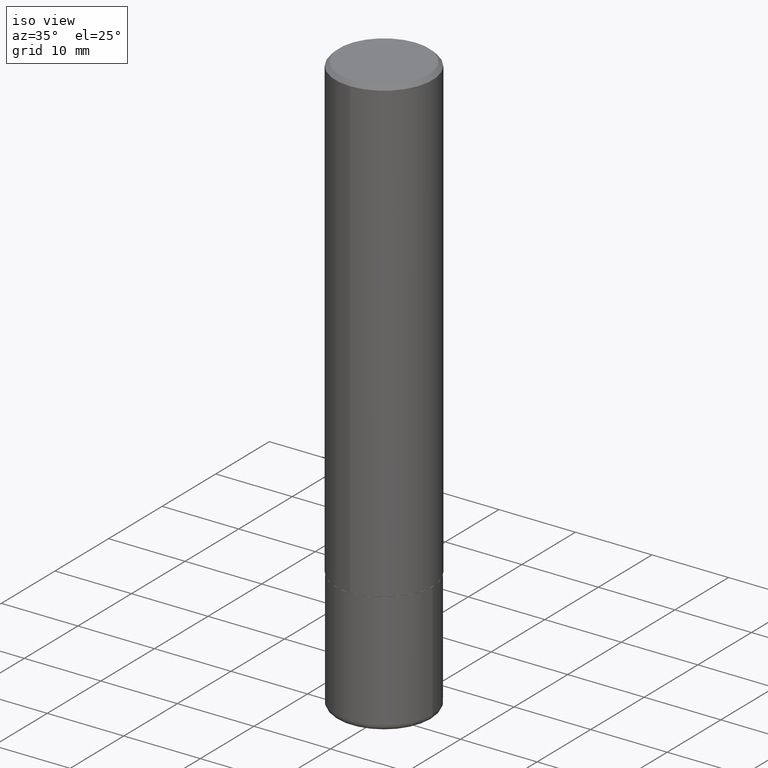
[diagram: clean part render]
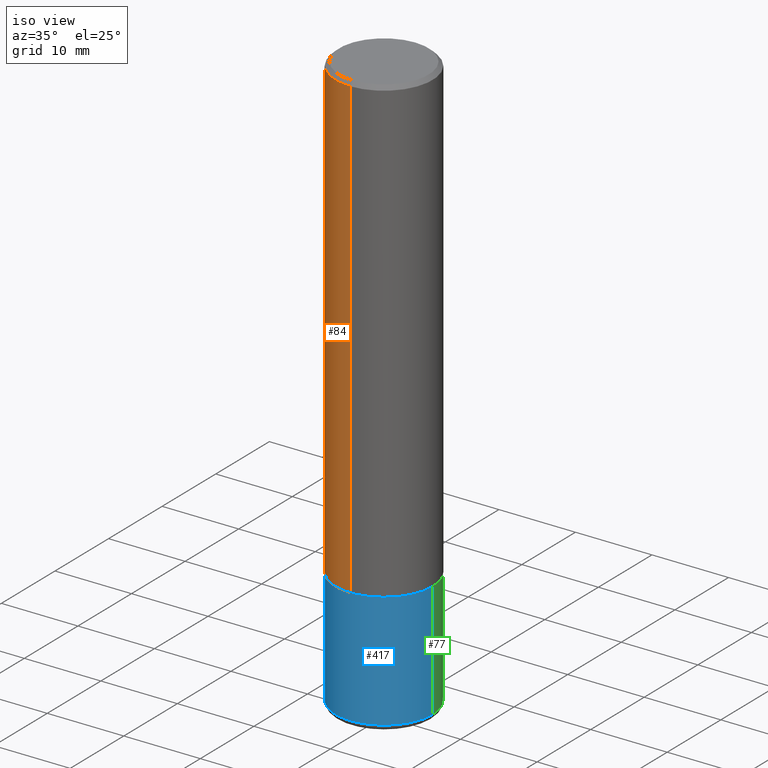
[diagram: same view with three faces highlighted in distinct colors, each labeled with its STEP entity id]
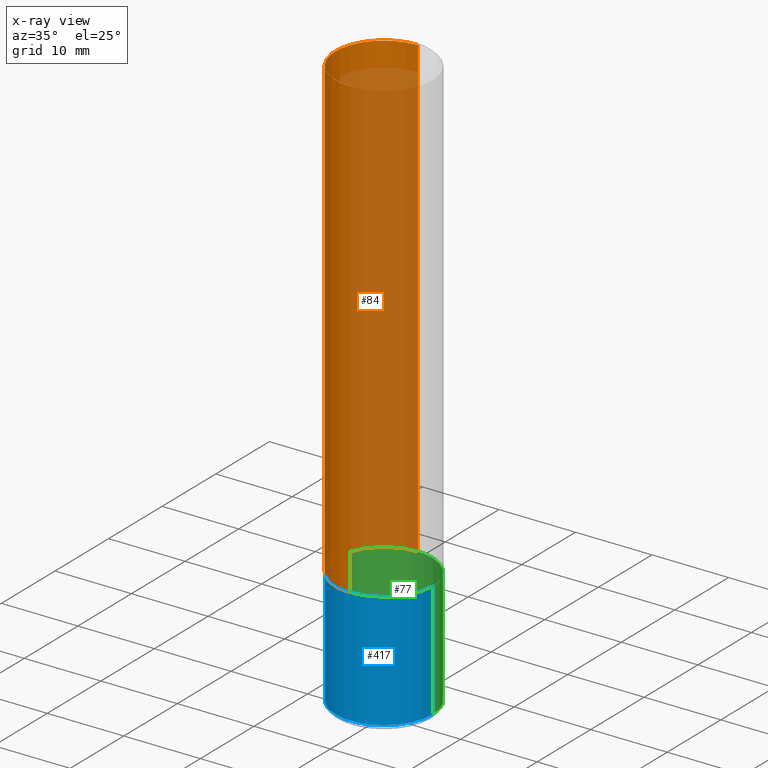
[diagram: x-ray of the same camera — body ghosted, the three highlighted faces saturated]
A machine part, iso view with three faces highlighted in distinct colors.
The next image is the same camera in x-ray (body ghosted, the three faces saturated) — at least one of them is partly hidden behind the body in this view.
Their STEP definitions:

[orange] entity #84 — the highlighted cylindrical surface (partial cylindrical patch) has radius 6.35 mm, axis along (-0, 0, 1).
#7 = FACE_OUTER_BOUND ( 'NONE', #274, .T. ) ;
#14 = CIRCLE ( 'NONE', #40, 0.2500000000000002776 ) ;
#22 = ORIENTED_EDGE ( 'NONE', *, *, #352, .T. ) ;
#24 = CARTESIAN_POINT ( 'NONE',  ( -1.745740669421567467E-15, -0.2500000000000001110, 8.727769067796535567E-16 ) ) ;
#34 = CYLINDRICAL_SURFACE ( 'NONE', #255, 0.2500000000000001110 ) ;
#36 = DIRECTION ( 'NONE',  ( -6.982962677686266711E-15, -1.000000000000000000, 3.491107627118612649E-15 ) ) ;
#40 = AXIS2_PLACEMENT_3D ( 'NONE', #329, #302, #112 ) ;
#63 = CARTESIAN_POINT ( 'NONE',  ( -1.715124499442882299E-15, -0.2500000000000000555, -0.01999999999999918510 ) ) ;
#71 = CARTESIAN_POINT ( 'NONE',  ( 4.891459535375212615E-31, -6.982215254237243146E-17, -0.02000000000000005593 ) ) ;
#75 = AXIS2_PLACEMENT_3D ( 'NONE', #71, #318, #299 ) ;
#84 = ADVANCED_FACE ( 'NONE', ( #7 ), #34, .T. ) ;
#98 = VECTOR ( 'NONE', #281, 39.37007874015748143 ) ;
#109 = DIRECTION ( 'NONE',  ( -2.445729767687599458E-29, 3.491107627118612255E-15, 1.000000000000000000 ) ) ;
#112 = DIRECTION ( 'NONE',  ( -6.982962677686265922E-15, -1.000000000000000000, 3.278217592397112312E-15 ) ) ;
#116 = EDGE_CURVE ( 'NONE', #201, #235, #178, .T. ) ;
#122 = ORIENTED_EDGE ( 'NONE', *, *, #365, .F. ) ;
#126 = CARTESIAN_POINT ( 'NONE',  ( 1.776356839400251254E-15, 0.2500000000000001110, -8.727769067796535567E-16 ) ) ;
#149 = VERTEX_POINT ( 'NONE', #276 ) ;
#151 = VECTOR ( 'NONE', #168, 39.37007874015748143 ) ;
#167 = ORIENTED_EDGE ( 'NONE', *, *, #385, .T. ) ;
#168 = DIRECTION ( 'NONE',  ( -2.445729767687599458E-29, 3.491107627118612649E-15, 1.000000000000000000 ) ) ;
#178 = CIRCLE ( 'NONE', #75, 0.2500000000000000000 ) ;
#201 = VERTEX_POINT ( 'NONE', #317 ) ;
#224 = CARTESIAN_POINT ( 'NONE',  ( 0.000000000000000000, 0.000000000000000000, 0.000000000000000000 ) ) ;
#235 = VERTEX_POINT ( 'NONE', #63 ) ;
#255 = AXIS2_PLACEMENT_3D ( 'NONE', #224, #109, #36 ) ;
#274 = EDGE_LOOP ( 'NONE', ( #122, #167, #22, #294 ) ) ;
#276 = CARTESIAN_POINT ( 'NONE',  ( -1.745740669421510471E-15, -0.2500000000000085487, -2.373999999999999222 ) ) ;
#281 = DIRECTION ( 'NONE',  ( -2.445729767687599458E-29, 3.491107627118612649E-15, 1.000000000000000000 ) ) ;
#294 = ORIENTED_EDGE ( 'NONE', *, *, #116, .F. ) ;
#299 = DIRECTION ( 'NONE',  ( -6.982962677686265922E-15, -1.000000000000000000, 3.483106191921935554E-15 ) ) ;
#302 = DIRECTION ( 'NONE',  ( -2.445729767687599458E-29, 3.491107627118612255E-15, 1.000000000000000000 ) ) ;
#311 = LINE ( 'NONE', #24, #98 ) ;
#317 = CARTESIAN_POINT ( 'NONE',  ( 1.745740669421566875E-15, 0.2499999999999999167, -0.02000000000000092676 ) ) ;
#318 = DIRECTION ( 'NONE',  ( -2.445729767687599458E-29, 3.491107627118612255E-15, 1.000000000000000000 ) ) ;
#329 = CARTESIAN_POINT ( 'NONE',  ( 5.806162468490361962E-29, -8.287889506779587323E-15, -2.374000000000000110 ) ) ;
#352 = EDGE_CURVE ( 'NONE', #149, #235, #311, .T. ) ;
#365 = EDGE_CURVE ( 'NONE', #372, #201, #412, .T. ) ;
#372 = VERTEX_POINT ( 'NONE', #395 ) ;
#385 = EDGE_CURVE ( 'NONE', #372, #149, #14, .T. ) ;
#395 = CARTESIAN_POINT ( 'NONE',  ( 1.776356839400280836E-15, 0.2499999999999919786, -2.374000000000000998 ) ) ;
#412 = LINE ( 'NONE', #126, #151 ) ;

[blue] entity #417 — the highlighted cylindrical surface (partial cylindrical patch) has radius 6.35 mm, axis along (-0, 0, 1).
#1 = ORIENTED_EDGE ( 'NONE', *, *, #298, .T. ) ;
#3 = DIRECTION ( 'NONE',  ( -2.445468806185136597E-29, 3.491481338843145583E-15, 1.000000000000000000 ) ) ;
#11 = CARTESIAN_POINT ( 'NONE',  ( 0.000000000000000000, 0.000000000000000000, 0.000000000000000000 ) ) ;
#25 = ORIENTED_EDGE ( 'NONE', *, *, #119, .F. ) ;
#29 = CARTESIAN_POINT ( 'NONE',  ( 7.263042354369856275E-29, -1.036969957636414298E-14, -2.970000000000000195 ) ) ;
#58 = VECTOR ( 'NONE', #76, 39.37007874015748143 ) ;
#74 = CARTESIAN_POINT ( 'NONE',  ( -0.2500000000000000000, -7.554627038658056086E-15, -2.375000000000000000 ) ) ;
#76 = DIRECTION ( 'NONE',  ( -2.445468806185136877E-29, 3.491481338843145188E-15, 1.000000000000000000 ) ) ;
#81 = CARTESIAN_POINT ( 'NONE',  ( 0.2500000000000000000, -1.003800884917403837E-14, -2.375000000000000000 ) ) ;
#83 = CARTESIAN_POINT ( 'NONE',  ( 5.807988414689700538E-29, -8.292268179752471696E-15, -2.375000000000000000 ) ) ;
#107 = CARTESIAN_POINT ( 'NONE',  ( -0.2499999999999998612, -8.593342736963892519E-15, -2.970000000000000195 ) ) ;
#118 = VERTEX_POINT ( 'NONE', #81 ) ;
#119 = EDGE_CURVE ( 'NONE', #120, #118, #343, .T. ) ;
#120 = VERTEX_POINT ( 'NONE', #74 ) ;
#145 = DIRECTION ( 'NONE',  ( 1.000000000000000000, -6.982962677686266711E-15, 4.876176775795935793E-29 ) ) ;
#157 = EDGE_LOOP ( 'NONE', ( #277, #1, #249, #25 ) ) ;
#162 = LINE ( 'NONE', #396, #58 ) ;
#177 = DIRECTION ( 'NONE',  ( -2.445468806185136877E-29, 3.491481338843145188E-15, 1.000000000000000000 ) ) ;
#181 = DIRECTION ( 'NONE',  ( 1.000000000000000000, -6.982962677686266711E-15, 0.000000000000000000 ) ) ;
#200 = LINE ( 'NONE', #205, #345 ) ;
#205 = CARTESIAN_POINT ( 'NONE',  ( 0.2500000000000000000, -1.745740669421566678E-15, 1.219044193948983948E-29 ) ) ;
#209 = DIRECTION ( 'NONE',  ( -2.445468806185136597E-29, 3.491481338843145583E-15, 1.000000000000000000 ) ) ;
#243 = DIRECTION ( 'NONE',  ( -2.445468806185136597E-29, 3.491481338843145583E-15, 1.000000000000000000 ) ) ;
#249 = ORIENTED_EDGE ( 'NONE', *, *, #409, .T. ) ;
#264 = CIRCLE ( 'NONE', #310, 0.2500000000000000000 ) ;
#277 = ORIENTED_EDGE ( 'NONE', *, *, #368, .F. ) ;
#292 = VERTEX_POINT ( 'NONE', #107 ) ;
#298 = EDGE_CURVE ( 'NONE', #292, #333, #264, .T. ) ;
#301 = CYLINDRICAL_SURFACE ( 'NONE', #384, 0.2500000000000000000 ) ;
#310 = AXIS2_PLACEMENT_3D ( 'NONE', #29, #3, #348 ) ;
#325 = FACE_OUTER_BOUND ( 'NONE', #157, .T. ) ;
#333 = VERTEX_POINT ( 'NONE', #414 ) ;
#343 = CIRCLE ( 'NONE', #416, 0.2500000000000000000 ) ;
#345 = VECTOR ( 'NONE', #177, 39.37007874015748143 ) ;
#348 = DIRECTION ( 'NONE',  ( 1.000000000000000000, -6.982962677686270655E-15, 0.000000000000000000 ) ) ;
#368 = EDGE_CURVE ( 'NONE', #292, #120, #162, .T. ) ;
#384 = AXIS2_PLACEMENT_3D ( 'NONE', #11, #243, #145 ) ;
#396 = CARTESIAN_POINT ( 'NONE',  ( -0.2500000000000000000, 1.776356839400250465E-15, -1.229733772563726445E-29 ) ) ;
#409 = EDGE_CURVE ( 'NONE', #333, #118, #200, .T. ) ;
#414 = CARTESIAN_POINT ( 'NONE',  ( 0.2499999999999998612, -1.211544024578571124E-14, -2.970000000000000195 ) ) ;
#416 = AXIS2_PLACEMENT_3D ( 'NONE', #83, #209, #181 ) ;
#417 = ADVANCED_FACE ( 'NONE', ( #325 ), #301, .T. ) ;

[green] entity #77 — the highlighted cylindrical surface (partial cylindrical patch) has radius 6.35 mm, axis along (-0, 0, 1).
#4 = AXIS2_PLACEMENT_3D ( 'NONE', #239, #10, #328 ) ;
#10 = DIRECTION ( 'NONE',  ( -2.445468806185136597E-29, 3.491481338843145583E-15, 1.000000000000000000 ) ) ;
#35 = EDGE_CURVE ( 'NONE', #333, #292, #278, .T. ) ;
#45 = AXIS2_PLACEMENT_3D ( 'NONE', #199, #105, #192 ) ;
#58 = VECTOR ( 'NONE', #76, 39.37007874015748143 ) ;
#74 = CARTESIAN_POINT ( 'NONE',  ( -0.2500000000000000000, -7.554627038658056086E-15, -2.375000000000000000 ) ) ;
#76 = DIRECTION ( 'NONE',  ( -2.445468806185136877E-29, 3.491481338843145188E-15, 1.000000000000000000 ) ) ;
#77 = ADVANCED_FACE ( 'NONE', ( #99 ), #415, .T. ) ;
#81 = CARTESIAN_POINT ( 'NONE',  ( 0.2500000000000000000, -1.003800884917403837E-14, -2.375000000000000000 ) ) ;
#99 = FACE_OUTER_BOUND ( 'NONE', #413, .T. ) ;
#105 = DIRECTION ( 'NONE',  ( -2.445468806185136597E-29, 3.491481338843145583E-15, 1.000000000000000000 ) ) ;
#107 = CARTESIAN_POINT ( 'NONE',  ( -0.2499999999999998612, -8.593342736963892519E-15, -2.970000000000000195 ) ) ;
#117 = AXIS2_PLACEMENT_3D ( 'NONE', #263, #349, #131 ) ;
#118 = VERTEX_POINT ( 'NONE', #81 ) ;
#120 = VERTEX_POINT ( 'NONE', #74 ) ;
#131 = DIRECTION ( 'NONE',  ( 1.000000000000000000, -6.982962677686266711E-15, 4.876176775795935793E-29 ) ) ;
#162 = LINE ( 'NONE', #396, #58 ) ;
#177 = DIRECTION ( 'NONE',  ( -2.445468806185136877E-29, 3.491481338843145188E-15, 1.000000000000000000 ) ) ;
#192 = DIRECTION ( 'NONE',  ( 1.000000000000000000, -6.982962677686270655E-15, 0.000000000000000000 ) ) ;
#199 = CARTESIAN_POINT ( 'NONE',  ( 7.263042354369856275E-29, -1.036969957636414298E-14, -2.970000000000000195 ) ) ;
#200 = LINE ( 'NONE', #205, #345 ) ;
#205 = CARTESIAN_POINT ( 'NONE',  ( 0.2500000000000000000, -1.745740669421566678E-15, 1.219044193948983948E-29 ) ) ;
#239 = CARTESIAN_POINT ( 'NONE',  ( 5.807988414689700538E-29, -8.292268179752471696E-15, -2.375000000000000000 ) ) ;
#263 = CARTESIAN_POINT ( 'NONE',  ( 0.000000000000000000, 0.000000000000000000, 0.000000000000000000 ) ) ;
#278 = CIRCLE ( 'NONE', #45, 0.2500000000000000000 ) ;
#280 = ORIENTED_EDGE ( 'NONE', *, *, #409, .F. ) ;
#292 = VERTEX_POINT ( 'NONE', #107 ) ;
#328 = DIRECTION ( 'NONE',  ( 1.000000000000000000, -6.982962677686266711E-15, 0.000000000000000000 ) ) ;
#333 = VERTEX_POINT ( 'NONE', #414 ) ;
#345 = VECTOR ( 'NONE', #177, 39.37007874015748143 ) ;
#349 = DIRECTION ( 'NONE',  ( -2.445468806185136597E-29, 3.491481338843145583E-15, 1.000000000000000000 ) ) ;
#358 = CIRCLE ( 'NONE', #4, 0.2500000000000000000 ) ;
#368 = EDGE_CURVE ( 'NONE', #292, #120, #162, .T. ) ;
#376 = EDGE_CURVE ( 'NONE', #118, #120, #358, .T. ) ;
#396 = CARTESIAN_POINT ( 'NONE',  ( -0.2500000000000000000, 1.776356839400250465E-15, -1.229733772563726445E-29 ) ) ;
#405 = ORIENTED_EDGE ( 'NONE', *, *, #368, .T. ) ;
#407 = ORIENTED_EDGE ( 'NONE', *, *, #35, .T. ) ;
#409 = EDGE_CURVE ( 'NONE', #333, #118, #200, .T. ) ;
#411 = ORIENTED_EDGE ( 'NONE', *, *, #376, .F. ) ;
#413 = EDGE_LOOP ( 'NONE', ( #407, #405, #411, #280 ) ) ;
#414 = CARTESIAN_POINT ( 'NONE',  ( 0.2499999999999998612, -1.211544024578571124E-14, -2.970000000000000195 ) ) ;
#415 = CYLINDRICAL_SURFACE ( 'NONE', #117, 0.2500000000000000000 ) ;